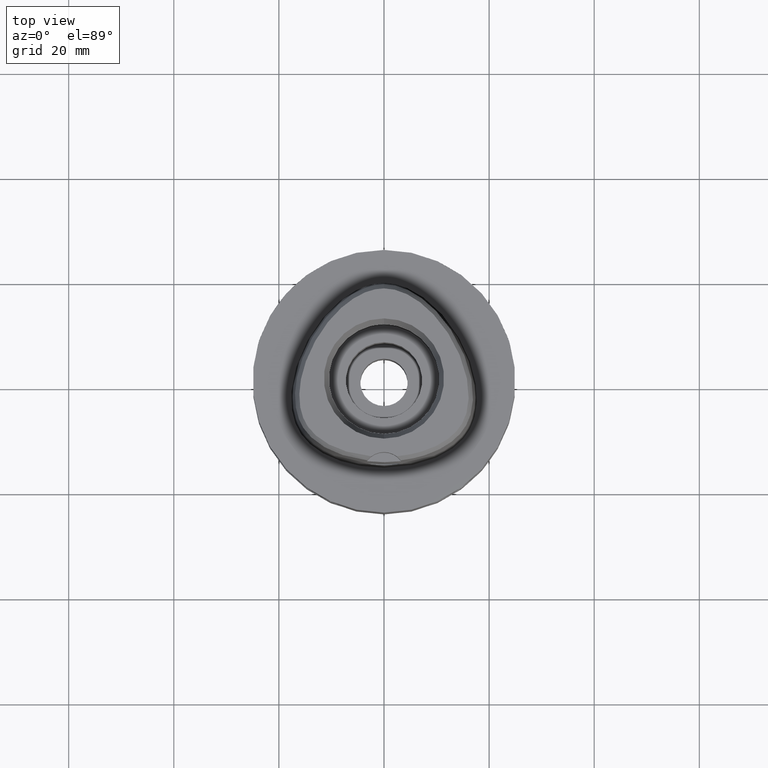
[diagram: clean part render]
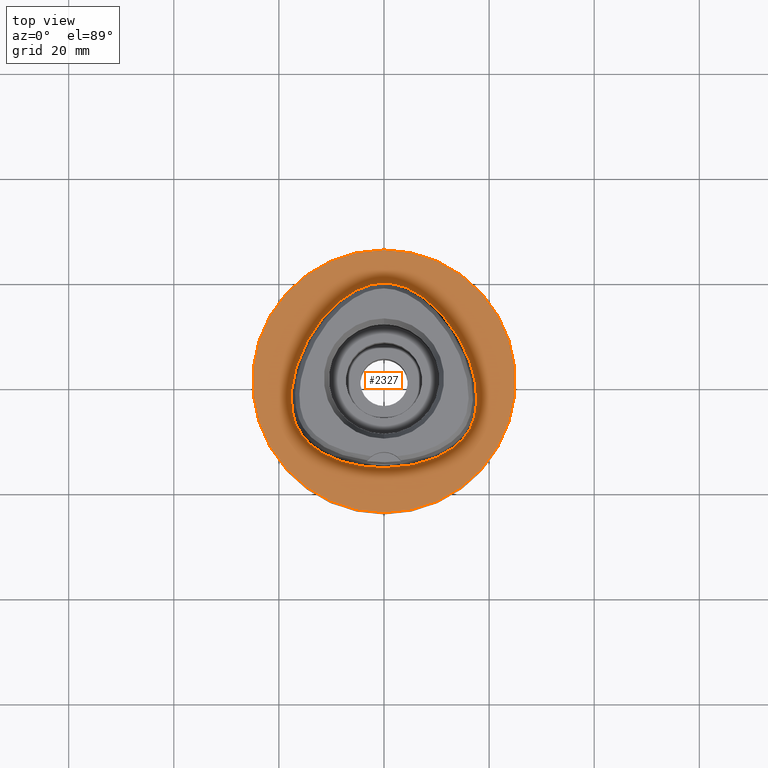
[diagram: same view with one face highlighted and labeled with its STEP entity id]
A machine part, top view. The second image highlights one B-rep face of the part: STEP entity #2327.
In plain terms, the highlighted planar face has unit normal (0, 0, -1).
Its self-contained STEP definition (entity closure, byte-faithful):
#276=CARTESIAN_POINT('',(0.E0,1.279755905109E-14,0.E0));
#277=DIRECTION('',(0.E0,0.E0,-1.E0));
#278=DIRECTION('',(0.E0,-1.E0,0.E0));
#279=AXIS2_PLACEMENT_3D('',#276,#277,#278);
#284=CARTESIAN_POINT('',(0.E0,1.279755905109E-14,0.E0));
#285=DIRECTION('',(0.E0,0.E0,-1.E0));
#286=DIRECTION('',(0.E0,1.E0,0.E0));
#287=AXIS2_PLACEMENT_3D('',#284,#285,#286);
#292=CARTESIAN_POINT('',(-1.878577642231E-11,-1.6455E1,1.714184350021E-13));
#293=CARTESIAN_POINT('',(7.520544970775E-1,-1.6455E1,1.714184350021E-13));
#294=CARTESIAN_POINT('',(2.228860586122E0,-1.639617223440E1,
-7.955557254887E-14));
#295=CARTESIAN_POINT('',(4.393897766251E0,-1.613829788532E1,
2.131685141787E-14));
#296=CARTESIAN_POINT('',(6.413582333440E0,-1.573029168066E1,0.E0));
#297=CARTESIAN_POINT('',(8.250040745429E0,-1.519983477269E1,0.E0));
#298=CARTESIAN_POINT('',(9.881537619360E0,-1.457551877177E1,0.E0));
#299=CARTESIAN_POINT('',(1.130626230784E1,-1.388335410763E1,0.E0));
#300=CARTESIAN_POINT('',(1.253549220256E1,-1.314343262176E1,0.E0));
#301=CARTESIAN_POINT('',(1.358591729990E1,-1.237044839573E1,0.E0));
#302=CARTESIAN_POINT('',(1.447686110690E1,-1.157371724318E1,0.E0));
#303=CARTESIAN_POINT('',(1.522827962908E1,-1.075540821107E1,0.E0));
#304=CARTESIAN_POINT('',(1.584997981983E1,-9.925219598291E0,0.E0));
#305=CARTESIAN_POINT('',(1.636712046663E1,-9.064646374572E0,0.E0));
#306=CARTESIAN_POINT('',(1.680111583863E1,-8.137770631661E0,0.E0));
#307=CARTESIAN_POINT('',(1.716028823178E1,-7.114005583873E0,0.E0));
#308=CARTESIAN_POINT('',(1.743519625486E1,-5.982733699389E0,0.E0));
#309=CARTESIAN_POINT('',(1.761454247605E1,-4.729703139032E0,0.E0));
#310=CARTESIAN_POINT('',(1.768211704686E1,-3.341959287542E0,0.E0));
#311=CARTESIAN_POINT('',(1.761782930036E1,-1.810101179913E0,0.E0));
#312=CARTESIAN_POINT('',(1.739895033698E1,-1.317112682474E-1,0.E0));
#313=CARTESIAN_POINT('',(1.700294340726E1,1.683923078633E0,0.E0));
#314=CARTESIAN_POINT('',(1.641230603512E1,3.610562547694E0,0.E0));
#315=CARTESIAN_POINT('',(1.562023043524E1,5.603127656776E0,0.E0));
#316=CARTESIAN_POINT('',(1.463711141431E1,7.597430653142E0,0.E0));
#317=CARTESIAN_POINT('',(1.348989830127E1,9.523895696650E0,0.E0));
#318=CARTESIAN_POINT('',(1.221667832768E1,1.132146060739E1,0.E0));
#319=CARTESIAN_POINT('',(1.086683506859E1,1.293619870250E1,0.E0));
#320=CARTESIAN_POINT('',(9.489324918269E0,1.433502117364E1,0.E0));
#321=CARTESIAN_POINT('',(8.122628878486E0,1.550883912672E1,0.E0));
#322=CARTESIAN_POINT('',(6.794297479735E0,1.646457467801E1,0.E0));
#323=CARTESIAN_POINT('',(5.519689172867E0,1.722004023709E1,0.E0));
#324=CARTESIAN_POINT('',(4.305066834601E0,1.779701779539E1,0.E0));
#325=CARTESIAN_POINT('',(3.150397822612E0,1.821724629736E1,0.E0));
#326=CARTESIAN_POINT('',(2.051175307320E0,1.850000862827E1,2.116958474140E-14));
#327=CARTESIAN_POINT('',(1.002672465136E0,1.866092948852E1,
-7.900596583005E-14));
#328=CARTESIAN_POINT('',(3.294798461533E-1,1.869499999998E1,
1.702341971092E-13));
#329=CARTESIAN_POINT('',(7.755985120876E-11,1.869499999998E1,
1.702341971092E-13));
#334=CARTESIAN_POINT('',(7.755985120876E-11,1.869499999998E1,
1.702341971092E-13));
#335=CARTESIAN_POINT('',(-3.295759186931E-1,1.869499999998E1,
1.702341971092E-13));
#336=CARTESIAN_POINT('',(-1.002941795035E0,1.866091233063E1,
-7.900596583005E-14));
#337=CARTESIAN_POINT('',(-2.051732925927E0,1.849989913349E1,
2.116958474140E-14));
#338=CARTESIAN_POINT('',(-3.151016817687E0,1.821705721996E1,0.E0));
#339=CARTESIAN_POINT('',(-4.305903382544E0,1.779667629778E1,0.E0));
#340=CARTESIAN_POINT('',(-5.520827674724E0,1.721944707481E1,0.E0));
#341=CARTESIAN_POINT('',(-6.795867983990E0,1.646356234537E1,0.E0));
#342=CARTESIAN_POINT('',(-8.124582525850E0,1.550731834414E1,0.E0));
#343=CARTESIAN_POINT('',(-9.491675783515E0,1.433284227771E1,0.E0));
#344=CARTESIAN_POINT('',(-1.086945255546E1,1.293333260558E1,0.E0));
#345=CARTESIAN_POINT('',(-1.221944110055E1,1.131788308487E1,0.E0));
#346=CARTESIAN_POINT('',(-1.349253657379E1,9.519855402023E0,0.E0));
#347=CARTESIAN_POINT('',(-1.463965089053E1,7.592770024477E0,0.E0));
#348=CARTESIAN_POINT('',(-1.562233731693E1,5.598375856198E0,0.E0));
#349=CARTESIAN_POINT('',(-1.641389016506E1,3.606034768388E0,0.E0));
#350=CARTESIAN_POINT('',(-1.700401205855E1,1.679814926123E0,0.E0));
#351=CARTESIAN_POINT('',(-1.739956074894E1,-1.352982755759E-1,0.E0));
#352=CARTESIAN_POINT('',(-1.761806726740E1,-1.812956980727E0,0.E0));
#353=CARTESIAN_POINT('',(-1.768210655685E1,-3.344559877090E0,0.E0));
#354=CARTESIAN_POINT('',(-1.761432762350E1,-4.731965011588E0,0.E0));
#355=CARTESIAN_POINT('',(-1.743477761552E1,-5.984854138534E0,0.E0));
#356=CARTESIAN_POINT('',(-1.715975078674E1,-7.115992938261E0,0.E0));
#357=CARTESIAN_POINT('',(-1.679976177308E1,-8.141029809616E0,0.E0));
#358=CARTESIAN_POINT('',(-1.636704456147E1,-9.064438463957E0,0.E0));
#359=CARTESIAN_POINT('',(-1.585200386670E1,-9.922103224333E0,0.E0));
#360=CARTESIAN_POINT('',(-1.523087197253E1,-1.075232462852E1,0.E0));
#361=CARTESIAN_POINT('',(-1.447948051682E1,-1.157113099391E1,0.E0));
#362=CARTESIAN_POINT('',(-1.358925530666E1,-1.236773986121E1,0.E0));
#363=CARTESIAN_POINT('',(-1.253889987658E1,-1.314117755696E1,0.E0));
#364=CARTESIAN_POINT('',(-1.130992361527E1,-1.388138756268E1,0.E0));
#365=CARTESIAN_POINT('',(-9.884823482977E0,-1.457412199330E1,0.E0));
#366=CARTESIAN_POINT('',(-8.253027961528E0,-1.519886051434E1,0.E0));
#367=CARTESIAN_POINT('',(-6.415740149371E0,-1.572979209410E1,0.E0));
#368=CARTESIAN_POINT('',(-4.395375053772E0,-1.613808320054E1,
2.131685141787E-14));
#369=CARTESIAN_POINT('',(-2.229510005853E0,-1.639614206733E1,
-7.955557254887E-14));
#370=CARTESIAN_POINT('',(-7.522639795559E-1,-1.6455E1,1.714184350021E-13));
#371=CARTESIAN_POINT('',(-1.878577642231E-11,-1.6455E1,1.714184350021E-13));
#1536=VERTEX_POINT('',#334);
#1537=VERTEX_POINT('',#371);
#1542=CARTESIAN_POINT('',(0.E0,-2.5E1,0.E0));
#1543=CARTESIAN_POINT('',(0.E0,2.5E1,0.E0));
#1544=VERTEX_POINT('',#1542);
#1545=VERTEX_POINT('',#1543);
#2311=CARTESIAN_POINT('',(0.E0,1.224646799147E-14,0.E0));
#2312=DIRECTION('',(0.E0,0.E0,-1.E0));
#2313=DIRECTION('',(0.E0,-1.E0,0.E0));
#2314=AXIS2_PLACEMENT_3D('',#2311,#2312,#2313);
#2315=PLANE('',#2314);
#2317=ORIENTED_EDGE('',*,*,#2316,.T.);
#2319=ORIENTED_EDGE('',*,*,#2318,.T.);
#2320=EDGE_LOOP('',(#2317,#2319));
#2321=FACE_OUTER_BOUND('',#2320,.F.);
#2323=ORIENTED_EDGE('',*,*,#2322,.T.);
#2324=ORIENTED_EDGE('',*,*,#2294,.T.);
#2325=EDGE_LOOP('',(#2323,#2324));
#2326=FACE_BOUND('',#2325,.F.);
#280=CIRCLE('',#279,2.5E1);
#288=CIRCLE('',#287,2.5E1);
#330=B_SPLINE_CURVE_WITH_KNOTS('',3,(#292,#293,#294,#295,#296,#297,#298,#299,
#300,#301,#302,#303,#304,#305,#306,#307,#308,#309,#310,#311,#312,#313,#314,#315,
#316,#317,#318,#319,#320,#321,#322,#323,#324,#325,#326,#327,#328,#329),
.UNSPECIFIED.,.F.,.F.,(4,1,1,1,1,1,1,1,1,1,1,1,1,1,1,1,1,1,1,1,1,1,1,1,1,1,1,1,
1,1,1,1,1,1,1,4),(0.E0,2.857142857143E-2,5.714285714286E-2,8.571428571429E-2,
1.142857142857E-1,1.428571428571E-1,1.714285714286E-1,2.E-1,2.285714285714E-1,
2.571428571429E-1,2.857142857143E-1,3.142857142857E-1,3.428571428571E-1,
3.714285714286E-1,4.E-1,4.285714285714E-1,4.571428571429E-1,4.857142857143E-1,
5.142857142857E-1,5.428571428571E-1,5.714285714286E-1,6.E-1,6.285714285714E-1,
6.571428571429E-1,6.857142857143E-1,7.142857142857E-1,7.428571428571E-1,
7.714285714286E-1,8.E-1,8.285714285714E-1,8.571428571429E-1,8.857142857143E-1,
9.142857142857E-1,9.428571428571E-1,9.714285714286E-1,1.E0),.UNSPECIFIED.);
#372=B_SPLINE_CURVE_WITH_KNOTS('',3,(#334,#335,#336,#337,#338,#339,#340,#341,
#342,#343,#344,#345,#346,#347,#348,#349,#350,#351,#352,#353,#354,#355,#356,#357,
#358,#359,#360,#361,#362,#363,#364,#365,#366,#367,#368,#369,#370,#371),
.UNSPECIFIED.,.F.,.F.,(4,1,1,1,1,1,1,1,1,1,1,1,1,1,1,1,1,1,1,1,1,1,1,1,1,1,1,1,
1,1,1,1,1,1,1,4),(0.E0,2.857142857143E-2,5.714285714286E-2,8.571428571429E-2,
1.142857142857E-1,1.428571428571E-1,1.714285714286E-1,2.E-1,2.285714285714E-1,
2.571428571429E-1,2.857142857143E-1,3.142857142857E-1,3.428571428571E-1,
3.714285714286E-1,4.E-1,4.285714285714E-1,4.571428571429E-1,4.857142857143E-1,
5.142857142857E-1,5.428571428571E-1,5.714285714286E-1,6.E-1,6.285714285714E-1,
6.571428571429E-1,6.857142857143E-1,7.142857142857E-1,7.428571428571E-1,
7.714285714286E-1,8.E-1,8.285714285714E-1,8.571428571429E-1,8.857142857143E-1,
9.142857142857E-1,9.428571428571E-1,9.714285714286E-1,1.E0),.UNSPECIFIED.);
#2294=EDGE_CURVE('',#1536,#1537,#372,.T.);
#2316=EDGE_CURVE('',#1544,#1545,#280,.T.);
#2318=EDGE_CURVE('',#1545,#1544,#288,.T.);
#2322=EDGE_CURVE('',#1537,#1536,#330,.T.);
#2327=ADVANCED_FACE('',(#2321,#2326),#2315,.F.);